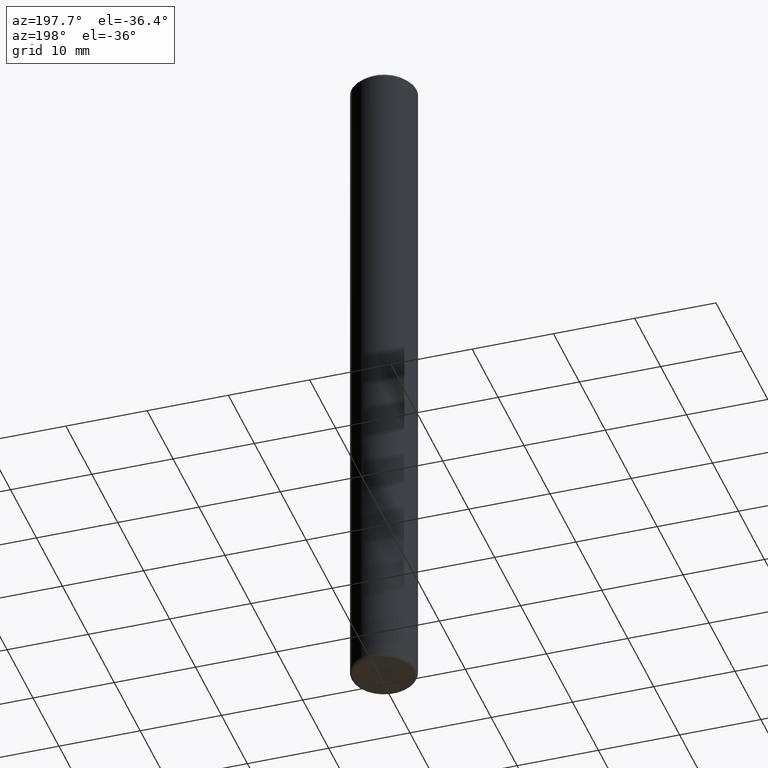
[diagram: clean part render]
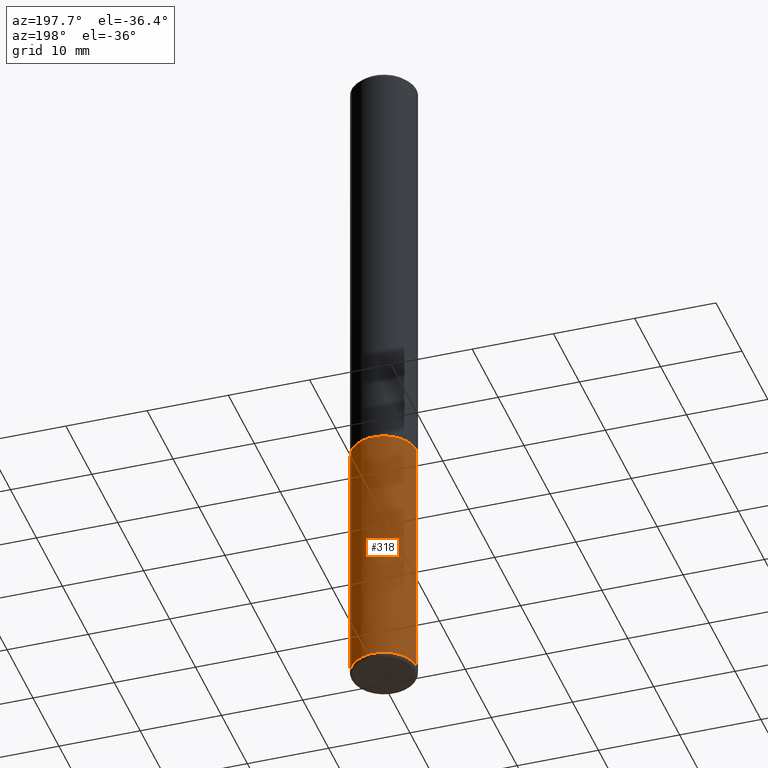
[diagram: same view with one face highlighted and labeled with its STEP entity id]
A machine part, auxiliary view. The second image highlights one B-rep face of the part: STEP entity #318.
In plain terms, the highlighted cylindrical surface (edge-blend (fillet) strip) has radius 4.0005 mm, axis along (-0, 0, 1).
Its self-contained STEP definition (entity closure, byte-faithful):
#11 = LINE ( 'NONE', #106, #315 ) ;
#49 = CARTESIAN_POINT ( 'NONE',  ( 5.102959757866523939E-29, -7.285674109763990928E-15, -2.086699999999999999 ) ) ;
#57 = EDGE_CURVE ( 'NONE', #188, #313, #118, .T. ) ;
#67 = FACE_OUTER_BOUND ( 'NONE', #377, .T. ) ;
#88 = EDGE_CURVE ( 'NONE', #173, #244, #145, .T. ) ;
#105 = DIRECTION ( 'NONE',  ( 1.000000000000000000, -6.982962677686273810E-15, 0.000000000000000000 ) ) ;
#106 = CARTESIAN_POINT ( 'NONE',  ( 0.1575000000000000289, -1.099816621735587283E-15, 7.679978421878599434E-30 ) ) ;
#118 = CIRCLE ( 'NONE', #124, 0.1575000000000000289 ) ;
#119 = CYLINDRICAL_SURFACE ( 'NONE', #370, 0.1575000000000000289 ) ;
#124 = AXIS2_PLACEMENT_3D ( 'NONE', #401, #240, #105 ) ;
#145 = CIRCLE ( 'NONE', #181, 0.1575000000000000011 ) ;
#160 = DIRECTION ( 'NONE',  ( 1.000000000000000000, -6.982962677686268288E-15, 0.000000000000000000 ) ) ;
#173 = VERTEX_POINT ( 'NONE', #325 ) ;
#175 = EDGE_CURVE ( 'NONE', #188, #173, #11, .T. ) ;
#181 = AXIS2_PLACEMENT_3D ( 'NONE', #49, #365, #160 ) ;
#184 = DIRECTION ( 'NONE',  ( -2.445468806185136597E-29, 3.491481338843145583E-15, 1.000000000000000000 ) ) ;
#188 = VERTEX_POINT ( 'NONE', #333 ) ;
#218 = CARTESIAN_POINT ( 'NONE',  ( -0.1575000000000000289, 1.119104808822157998E-15, -7.747322767151478386E-30 ) ) ;
#221 = LINE ( 'NONE', #218, #373 ) ;
#233 = DIRECTION ( 'NONE',  ( -2.445468806185136877E-29, 3.491481338843145188E-15, 1.000000000000000000 ) ) ;
#240 = DIRECTION ( 'NONE',  ( -2.445468806185136597E-29, 3.491481338843145583E-15, 1.000000000000000000 ) ) ;
#244 = VERTEX_POINT ( 'NONE', #359 ) ;
#252 = CARTESIAN_POINT ( 'NONE',  ( 0.000000000000000000, 0.000000000000000000, 0.000000000000000000 ) ) ;
#258 = ORIENTED_EDGE ( 'NONE', *, *, #88, .F. ) ;
#279 = ORIENTED_EDGE ( 'NONE', *, *, #175, .F. ) ;
#299 = ORIENTED_EDGE ( 'NONE', *, *, #57, .T. ) ;
#302 = ORIENTED_EDGE ( 'NONE', *, *, #383, .T. ) ;
#313 = VERTEX_POINT ( 'NONE', #386 ) ;
#315 = VECTOR ( 'NONE', #233, 39.37007874015748143 ) ;
#318 = ADVANCED_FACE ( 'NONE', ( #67 ), #119, .T. ) ;
#325 = CARTESIAN_POINT ( 'NONE',  ( 0.1575000000000000011, -8.385490731499577619E-15, -2.086699999999999999 ) ) ;
#333 = CARTESIAN_POINT ( 'NONE',  ( 0.1574999999999999456, -1.271527673979896669E-14, -3.326799999999999979 ) ) ;
#351 = DIRECTION ( 'NONE',  ( 1.000000000000000000, -6.982962677686267499E-15, 4.876176775795935232E-29 ) ) ;
#354 = DIRECTION ( 'NONE',  ( -2.445468806185136877E-29, 3.491481338843145188E-15, 1.000000000000000000 ) ) ;
#359 = CARTESIAN_POINT ( 'NONE',  ( -0.1575000000000000011, -8.331462305091527069E-15, -2.086699999999999999 ) ) ;
#365 = DIRECTION ( 'NONE',  ( -2.445468806185136597E-29, 3.491481338843145583E-15, 1.000000000000000000 ) ) ;
#370 = AXIS2_PLACEMENT_3D ( 'NONE', #252, #184, #351 ) ;
#373 = VECTOR ( 'NONE', #354, 39.37007874015748143 ) ;
#377 = EDGE_LOOP ( 'NONE', ( #299, #302, #258, #279 ) ) ;
#383 = EDGE_CURVE ( 'NONE', #313, #244, #221, .T. ) ;
#386 = CARTESIAN_POINT ( 'NONE',  ( -0.1574999999999999456, -1.049635530924122081E-14, -3.326799999999999979 ) ) ;
#401 = CARTESIAN_POINT ( 'NONE',  ( 8.135585624416713045E-29, -1.161546011806337842E-14, -3.326799999999999979 ) ) ;